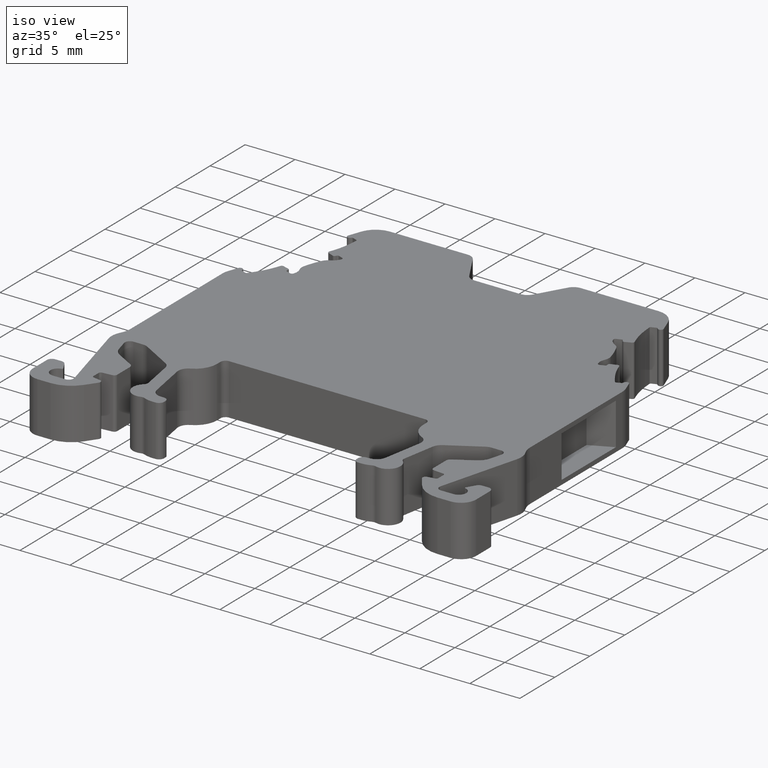
[diagram: clean part render]
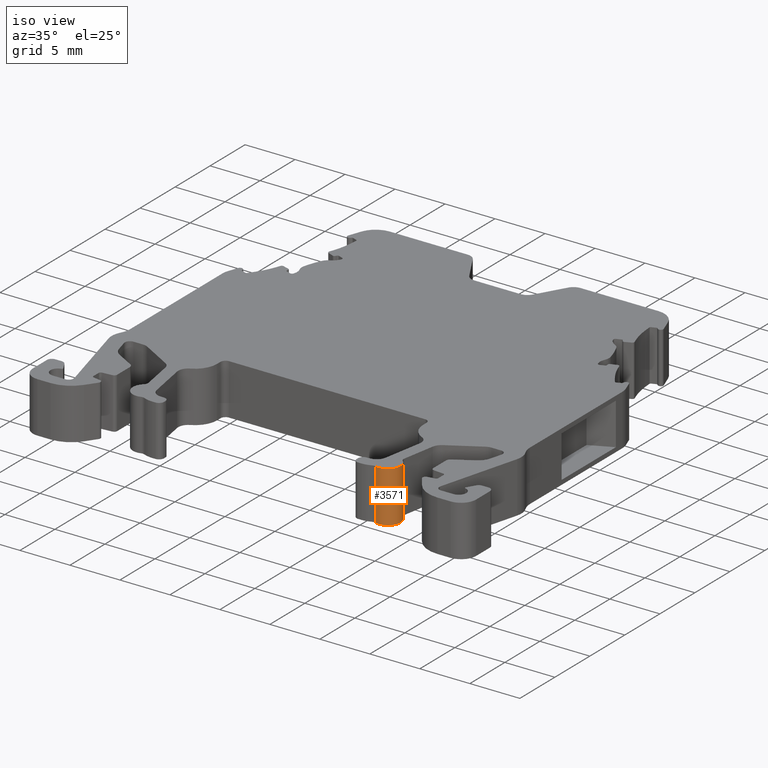
[diagram: same view with one face highlighted and labeled with its STEP entity id]
A machine part, iso view. The second image highlights one B-rep face of the part: STEP entity #3571.
In plain terms, the highlighted cylindrical surface (edge-blend (fillet) strip) has radius 1.25 mm, axis along (0, 0, -1).
Its self-contained STEP definition (entity closure, byte-faithful):
#213 = LINE ( 'NONE', #240, #1829 ) ;
#240 = CARTESIAN_POINT ( 'NONE',  ( 1473.140735790600000, 921.6521540635159200, 9.037842237415203400 ) ) ;
#271 = DIRECTION ( 'NONE',  ( 0.0000000000000000000, 0.0000000000000000000, -1.000000000000000000 ) ) ;
#390 = ORIENTED_EDGE ( 'NONE', *, *, #4095, .F. ) ;
#492 = ORIENTED_EDGE ( 'NONE', *, *, #1349, .T. ) ;
#707 = AXIS2_PLACEMENT_3D ( 'NONE', #4777, #7574, #7513 ) ;
#1215 = LINE ( 'NONE', #2651, #6505 ) ;
#1241 = DIRECTION ( 'NONE',  ( 0.0000000000000000000, 0.0000000000000000000, -1.000000000000000000 ) ) ;
#1349 = EDGE_CURVE ( 'NONE', #7301, #7033, #1215, .T. ) ;
#1829 = VECTOR ( 'NONE', #271, 1000.000000000000000 ) ;
#2024 = CARTESIAN_POINT ( 'NONE',  ( 1471.920191232291900, 919.5271785185789200, -42.94999999999999600 ) ) ;
#2086 = AXIS2_PLACEMENT_3D ( 'NONE', #2541, #3943, #7480 ) ;
#2105 = DIRECTION ( 'NONE',  ( 0.0000000000000000000, 0.0000000000000000000, -1.000000000000000000 ) ) ;
#2541 = CARTESIAN_POINT ( 'NONE',  ( 1472.315967280087800, 920.7128687479349800, -42.94999999999999600 ) ) ;
#2651 = CARTESIAN_POINT ( 'NONE',  ( 1471.920191232291900, 919.5271785185789200, 9.037842237415203400 ) ) ;
#2846 = CARTESIAN_POINT ( 'NONE',  ( 1472.315967280087800, 920.7128687479349800, 9.037842237415203400 ) ) ;
#3541 = EDGE_CURVE ( 'NONE', #4224, #5667, #213, .T. ) ;
#3571 = ADVANCED_FACE ( 'NONE', ( #4188 ), #3968, .T. ) ;
#3917 = EDGE_CURVE ( 'NONE', #4224, #7301, #5142, .T. ) ;
#3943 = DIRECTION ( 'NONE',  ( 0.0000000000000000000, 0.0000000000000000000, -1.000000000000000000 ) ) ;
#3968 = CYLINDRICAL_SURFACE ( 'NONE', #7704, 1.249999999999751300 ) ;
#4095 = EDGE_CURVE ( 'NONE', #5667, #7033, #7555, .T. ) ;
#4161 = ORIENTED_EDGE ( 'NONE', *, *, #3917, .T. ) ;
#4188 = FACE_OUTER_BOUND ( 'NONE', #5795, .T. ) ;
#4224 = VERTEX_POINT ( 'NONE', #8493 ) ;
#4777 = CARTESIAN_POINT ( 'NONE',  ( 1472.315967280087800, 920.7128687479349800, -48.05000000000000400 ) ) ;
#5142 = CIRCLE ( 'NONE', #2086, 1.249999999999751300 ) ;
#5351 = CARTESIAN_POINT ( 'NONE',  ( 1473.140735790600000, 921.6521540635159200, -48.05000000000000400 ) ) ;
#5667 = VERTEX_POINT ( 'NONE', #5351 ) ;
#5742 = CARTESIAN_POINT ( 'NONE',  ( 1471.920191232291900, 919.5271785185789200, -48.05000000000000400 ) ) ;
#5795 = EDGE_LOOP ( 'NONE', ( #4161, #492, #390, #7671 ) ) ;
#6505 = VECTOR ( 'NONE', #1241, 1000.000000000000000 ) ;
#7033 = VERTEX_POINT ( 'NONE', #5742 ) ;
#7301 = VERTEX_POINT ( 'NONE', #2024 ) ;
#7480 = DIRECTION ( 'NONE',  ( -1.000000000000000000, 0.0000000000000000000, 0.0000000000000000000 ) ) ;
#7513 = DIRECTION ( 'NONE',  ( 1.000000000000000000, 8.881784197003019400E-014, 0.0000000000000000000 ) ) ;
#7555 = CIRCLE ( 'NONE', #707, 1.249999999999751300 ) ;
#7574 = DIRECTION ( 'NONE',  ( -0.0000000000000000000, 0.0000000000000000000, -1.000000000000000000 ) ) ;
#7671 = ORIENTED_EDGE ( 'NONE', *, *, #3541, .F. ) ;
#7704 = AXIS2_PLACEMENT_3D ( 'NONE', #2846, #2105, #7731 ) ;
#7731 = DIRECTION ( 'NONE',  ( -1.000000000000000000, 0.0000000000000000000, 0.0000000000000000000 ) ) ;
#8493 = CARTESIAN_POINT ( 'NONE',  ( 1473.140735790600000, 921.6521540635159200, -42.94999999999999600 ) ) ;